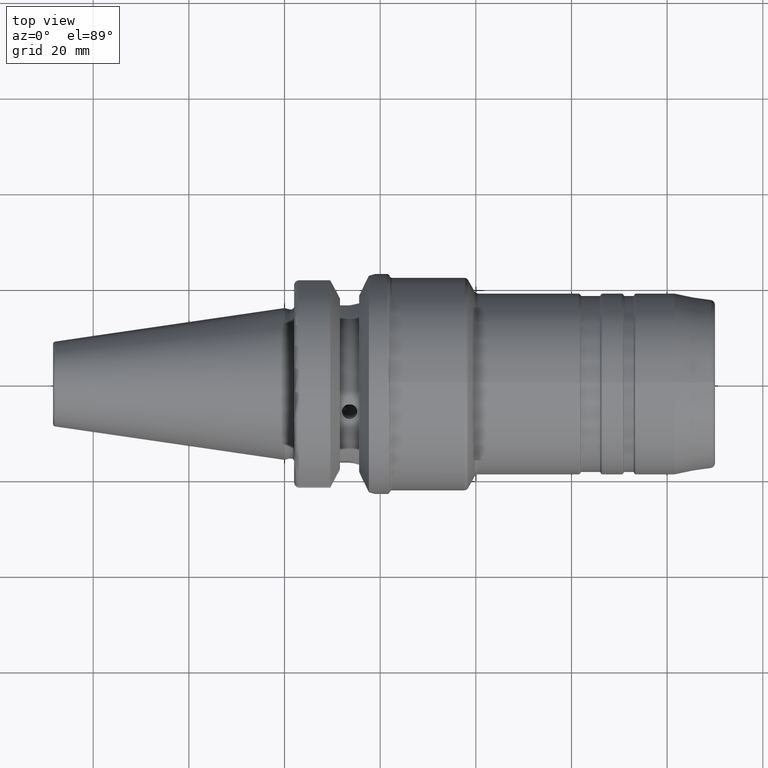
[diagram: clean part render]
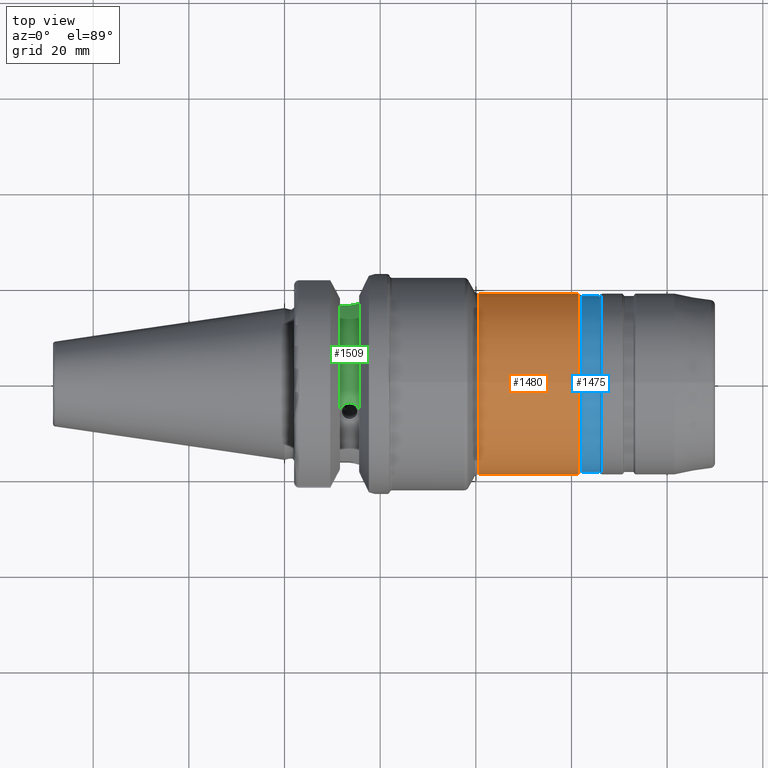
[diagram: same view with three faces highlighted in distinct colors, each labeled with its STEP entity id]
A machine part, top view with three faces highlighted in distinct colors.
Their STEP definitions:

[orange] entity #1480 — the highlighted cylindrical surface (bore or boss wall) has radius 19 mm, axis along (1, 0, 0).
#123=LINE('',#2368,#196);
#196=VECTOR('',#1872,19.);
#265=CYLINDRICAL_SURFACE('',#1614,19.);
#312=FACE_OUTER_BOUND('',#405,.T.);
#405=EDGE_LOOP('',(#1026,#1027,#1028,#1029));
#515=CIRCLE('',#1613,19.);
#516=CIRCLE('',#1615,19.);
#616=VERTEX_POINT('',#2363);
#617=VERTEX_POINT('',#2367);
#771=EDGE_CURVE('',#616,#616,#515,.T.);
#772=EDGE_CURVE('',#616,#617,#123,.T.);
#773=EDGE_CURVE('',#617,#617,#516,.T.);
#1026=ORIENTED_EDGE('',*,*,#771,.F.);
#1027=ORIENTED_EDGE('',*,*,#772,.T.);
#1028=ORIENTED_EDGE('',*,*,#773,.F.);
#1029=ORIENTED_EDGE('',*,*,#772,.F.);
#1480=ADVANCED_FACE('',(#312),#265,.T.);
#1613=AXIS2_PLACEMENT_3D('',#2365,#1868,#1869);
#1614=AXIS2_PLACEMENT_3D('',#2366,#1870,#1871);
#1615=AXIS2_PLACEMENT_3D('',#2369,#1873,#1874);
#1868=DIRECTION('center_axis',(1.,0.,0.));
#1869=DIRECTION('ref_axis',(0.,1.22464679914735E-16,1.));
#1870=DIRECTION('center_axis',(1.,0.,0.));
#1871=DIRECTION('ref_axis',(0.,0.,-1.));
#1872=DIRECTION('',(-1.,0.,0.));
#1873=DIRECTION('center_axis',(-1.,0.,0.));
#1874=DIRECTION('ref_axis',(0.,1.22464679914735E-16,1.));
#2363=CARTESIAN_POINT('',(61.4803847577293,-2.32682891837997E-15,19.));
#2365=CARTESIAN_POINT('Origin',(61.4803847577293,0.,0.));
#2366=CARTESIAN_POINT('Origin',(50.8556624327026,0.,0.));
#2367=CARTESIAN_POINT('',(40.5773502691896,-2.32682891837997E-15,19.));
#2368=CARTESIAN_POINT('',(50.8556624327026,-2.32682891837997E-15,19.));
#2369=CARTESIAN_POINT('Origin',(40.5773502691896,0.,0.));

[blue] entity #1475 — the highlighted cylindrical surface (bore or boss wall) has radius 18.5 mm, axis along (1, 0, 0).
#120=LINE('',#2348,#193);
#193=VECTOR('',#1845,18.5);
#264=CYLINDRICAL_SURFACE('',#1602,18.5);
#307=FACE_OUTER_BOUND('',#400,.T.);
#400=EDGE_LOOP('',(#1006,#1007,#1008,#1009));
#506=CIRCLE('',#1599,18.5);
#509=CIRCLE('',#1603,18.5);
#610=VERTEX_POINT('',#2341);
#612=VERTEX_POINT('',#2347);
#759=EDGE_CURVE('',#610,#610,#506,.T.);
#762=EDGE_CURVE('',#610,#612,#120,.T.);
#763=EDGE_CURVE('',#612,#612,#509,.T.);
#1006=ORIENTED_EDGE('',*,*,#759,.F.);
#1007=ORIENTED_EDGE('',*,*,#762,.T.);
#1008=ORIENTED_EDGE('',*,*,#763,.F.);
#1009=ORIENTED_EDGE('',*,*,#762,.F.);
#1475=ADVANCED_FACE('',(#307),#264,.T.);
#1599=AXIS2_PLACEMENT_3D('',#2342,#1837,#1838);
#1602=AXIS2_PLACEMENT_3D('',#2346,#1843,#1844);
#1603=AXIS2_PLACEMENT_3D('',#2349,#1846,#1847);
#1837=DIRECTION('center_axis',(1.,0.,0.));
#1838=DIRECTION('ref_axis',(0.,1.22464679914735E-16,1.));
#1843=DIRECTION('center_axis',(1.,0.,0.));
#1844=DIRECTION('ref_axis',(0.,0.,-1.));
#1845=DIRECTION('',(-1.,0.,0.));
#1846=DIRECTION('center_axis',(-1.,0.,0.));
#1847=DIRECTION('ref_axis',(0.,1.22464679914735E-16,1.));
#2341=CARTESIAN_POINT('',(65.8845299461621,-2.2655965784226E-15,18.5));
#2342=CARTESIAN_POINT('Origin',(65.8845299461621,0.,0.));
#2346=CARTESIAN_POINT('Origin',(64.,0.,0.));
#2347=CARTESIAN_POINT('',(62.1154700538379,-2.2655965784226E-15,18.5));
#2348=CARTESIAN_POINT('',(64.,-2.2655965784226E-15,18.5));
#2349=CARTESIAN_POINT('Origin',(62.1154700538379,0.,0.));

[green] entity #1509 — the highlighted cylindrical surface (partial cylindrical patch) has radius 18 mm, axis along (1, 0, 0).
#45=B_SPLINE_CURVE_WITH_KNOTS('',3,(#2536,#2537,#2538,#2539,#2540,#2541,
#2542,#2543,#2544,#2545,#2546,#2547,#2548,#2549,#2550,#2551,#2552,#2553),
 .UNSPECIFIED.,.F.,.F.,(4,2,2,2,2,2,2,2,4),(0.301616805591308,0.377020810963282,
0.452424816335256,0.527829213758936,0.603233611182616,0.678638008606296,
0.754042406029977,0.829446411401951,0.904850416773925),.UNSPECIFIED.);
#48=B_SPLINE_CURVE_WITH_KNOTS('',3,(#2633,#2634,#2635,#2636,#2637,#2638),
 .UNSPECIFIED.,.F.,.F.,(4,2,4),(4.44885108089523,4.6204730535255,4.67703896920055),
 .UNSPECIFIED.);
#140=LINE('',#2640,#213);
#213=VECTOR('',#2035,10.);
#278=CYLINDRICAL_SURFACE('',#1686,18.);
#341=FACE_OUTER_BOUND('',#440,.T.);
#440=EDGE_LOOP('',(#1158,#1159,#1160,#1161,#1162));
#549=CIRCLE('',#1687,18.);
#550=CIRCLE('',#1688,18.);
#644=VERTEX_POINT('',#2533);
#645=VERTEX_POINT('',#2535);
#660=VERTEX_POINT('',#2630);
#661=VERTEX_POINT('',#2632);
#662=VERTEX_POINT('',#2639);
#818=EDGE_CURVE('',#645,#644,#45,.T.);
#841=EDGE_CURVE('',#660,#644,#549,.T.);
#842=EDGE_CURVE('',#660,#661,#48,.T.);
#843=EDGE_CURVE('',#661,#662,#140,.T.);
#844=EDGE_CURVE('',#662,#645,#550,.T.);
#1158=ORIENTED_EDGE('',*,*,#818,.T.);
#1159=ORIENTED_EDGE('',*,*,#841,.F.);
#1160=ORIENTED_EDGE('',*,*,#842,.T.);
#1161=ORIENTED_EDGE('',*,*,#843,.T.);
#1162=ORIENTED_EDGE('',*,*,#844,.T.);
#1509=ADVANCED_FACE('',(#341),#278,.T.);
#1686=AXIS2_PLACEMENT_3D('',#2629,#2031,#2032);
#1687=AXIS2_PLACEMENT_3D('',#2631,#2033,#2034);
#1688=AXIS2_PLACEMENT_3D('',#2641,#2036,#2037);
#2031=DIRECTION('center_axis',(1.,1.62798202122572E-21,0.));
#2032=DIRECTION('ref_axis',(0.,1.,0.));
#2033=DIRECTION('center_axis',(1.,1.62798202122572E-21,0.));
#2034=DIRECTION('ref_axis',(0.,0.,-1.));
#2035=DIRECTION('',(-1.,-1.62798202122572E-21,0.));
#2036=DIRECTION('center_axis',(1.,1.62798202122572E-21,0.));
#2037=DIRECTION('ref_axis',(0.,0.,-1.));
#2533=CARTESIAN_POINT('',(15.6,-6.15636257986203,16.9144671741463));
#2535=CARTESIAN_POINT('',(11.6,-6.15636257986395,16.9144671741456));
#2536=CARTESIAN_POINT('Ctrl Pts',(11.6,-6.15636257986204,16.9144671741463));
#2537=CARTESIAN_POINT('Ctrl Pts',(11.6,-5.92017395510955,17.0004328032285));
#2538=CARTESIAN_POINT('Ctrl Pts',(11.6502741541558,-5.66638994445906,17.0866270171134));
#2539=CARTESIAN_POINT('Ctrl Pts',(11.8544462906484,-5.19623089225241,17.2354281159616));
#2540=CARTESIAN_POINT('Ctrl Pts',(12.0083328280156,-4.97994110148113,17.2983199183638));
#2541=CARTESIAN_POINT('Ctrl Pts',(12.3632409698814,-4.63687000353515,17.3934218103306));
#2542=CARTESIAN_POINT('Ctrl Pts',(12.587996750585,-4.48716279851812,17.4320366703388));
#2543=CARTESIAN_POINT('Ctrl Pts',(13.08069335908,-4.28809828983861,17.4820692588007));
#2544=CARTESIAN_POINT('Ctrl Pts',(13.3486520085877,-4.23885707963151,17.4937729109091));
#2545=CARTESIAN_POINT('Ctrl Pts',(13.8513479914123,-4.23885707963151,17.4937729109091));
#2546=CARTESIAN_POINT('Ctrl Pts',(14.1193066409199,-4.28809828983861,17.4820692588007));
#2547=CARTESIAN_POINT('Ctrl Pts',(14.6120032494149,-4.48716279851812,17.4320366703388));
#2548=CARTESIAN_POINT('Ctrl Pts',(14.8367590301186,-4.63687000353515,17.3934218103306));
#2549=CARTESIAN_POINT('Ctrl Pts',(15.1916671719844,-4.97994110148113,17.2983199183638));
#2550=CARTESIAN_POINT('Ctrl Pts',(15.3455537093516,-5.19623089225241,17.2354281159616));
#2551=CARTESIAN_POINT('Ctrl Pts',(15.5497258458442,-5.66638994445906,17.0866270171134));
#2552=CARTESIAN_POINT('Ctrl Pts',(15.6,-5.92017395510956,17.0004328032285));
#2553=CARTESIAN_POINT('Ctrl Pts',(15.6,-6.15636257986204,16.9144671741463));
#2629=CARTESIAN_POINT('Origin',(13.6,2.08175771018334E-15,0.));
#2630=CARTESIAN_POINT('',(15.6,16.757684804292,6.57114906237867));
#2631=CARTESIAN_POINT('Origin',(15.6,2.08176096614738E-15,0.));
#2632=CARTESIAN_POINT('',(13.4980384612482,16.3,7.636098480245));
#2633=CARTESIAN_POINT('Ctrl Pts',(15.6,16.757684804292,6.57114906237867));
#2634=CARTESIAN_POINT('Ctrl Pts',(15.1240022455652,16.6256027426009,6.90798353944052));
#2635=CARTESIAN_POINT('Ctrl Pts',(14.6012065414299,16.4995936761885,7.19909968210666));
#2636=CARTESIAN_POINT('Ctrl Pts',(13.8692695970121,16.3611703468843,7.5045998651608));
#2637=CARTESIAN_POINT('Ctrl Pts',(13.6847796623189,16.329191641879,7.57378606195196));
#2638=CARTESIAN_POINT('Ctrl Pts',(13.4980384612482,16.3,7.636098480245));
#2639=CARTESIAN_POINT('',(11.6,16.3,7.636098480245));
#2640=CARTESIAN_POINT('',(13.6,16.3,7.636098480245));
#2641=CARTESIAN_POINT('Origin',(11.6,2.08175445421929E-15,0.));